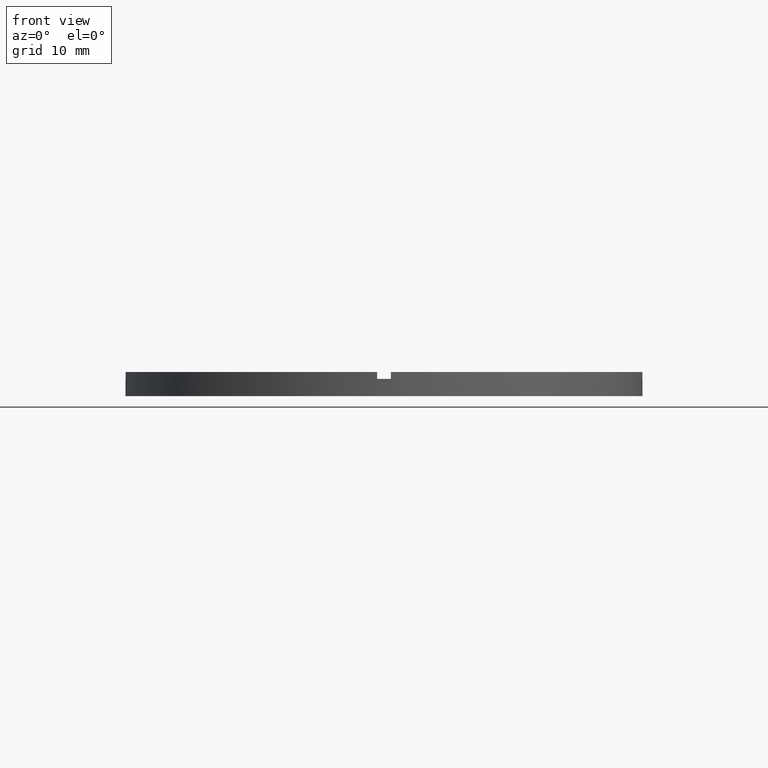
[diagram: clean part render]
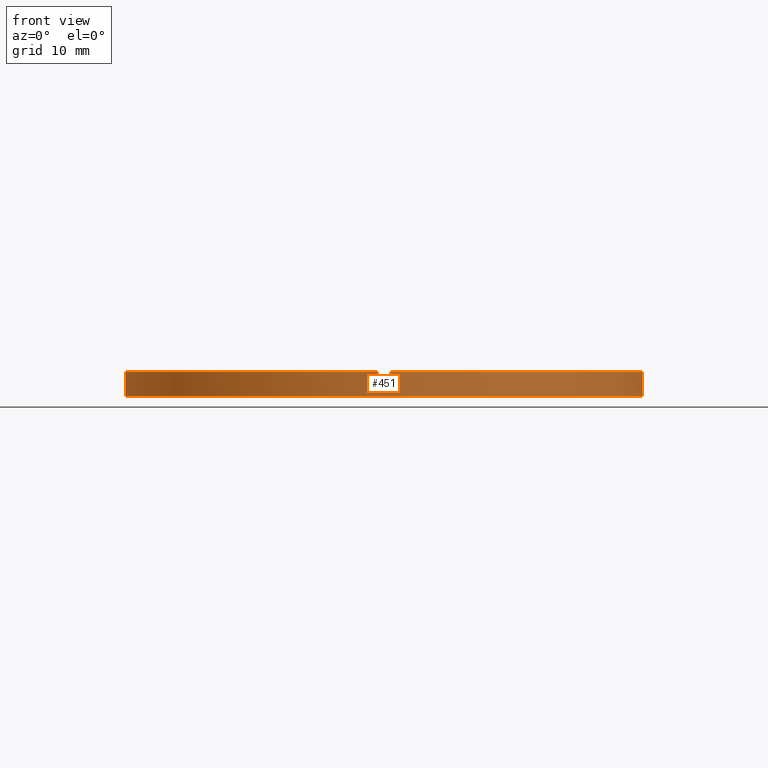
[diagram: same view with one face highlighted and labeled with its STEP entity id]
A machine part, front view. The second image highlights one B-rep face of the part: STEP entity #451.
In plain terms, the highlighted cylindrical surface (partial cylindrical patch) has radius 37.5 mm, axis along (-0, -0, -1).
Its self-contained STEP definition (entity closure, byte-faithful):
#2 = CIRCLE ( 'NONE', #723, 37.50000000000000711 ) ;
#4 = EDGE_CURVE ( 'NONE', #523, #440, #331, .T. ) ;
#8 = FACE_OUTER_BOUND ( 'NONE', #143, .T. ) ;
#9 = VECTOR ( 'NONE', #655, 1000.000000000000000 ) ;
#12 = CARTESIAN_POINT ( 'NONE',  ( 37.48666429545312440, -1.000000000000157430, 3.500000000000000000 ) ) ;
#13 = CIRCLE ( 'NONE', #747, 37.50000000000000711 ) ;
#16 = EDGE_CURVE ( 'NONE', #732, #409, #344, .T. ) ;
#27 = ORIENTED_EDGE ( 'NONE', *, *, #382, .F. ) ;
#33 = CARTESIAN_POINT ( 'NONE',  ( 0.000000000000000000, 0.000000000000000000, 2.500000000000000000 ) ) ;
#37 = ORIENTED_EDGE ( 'NONE', *, *, #16, .T. ) ;
#42 = CARTESIAN_POINT ( 'NONE',  ( 0.000000000000000000, 0.000000000000000000, 3.500000000000000000 ) ) ;
#49 = EDGE_CURVE ( 'NONE', #662, #440, #595, .T. ) ;
#55 = DIRECTION ( 'NONE',  ( -1.000000000000000000, 0.000000000000000000, 0.000000000000000000 ) ) ;
#66 = CARTESIAN_POINT ( 'NONE',  ( 0.000000000000000000, 0.000000000000000000, 2.500000000000000000 ) ) ;
#68 = DIRECTION ( 'NONE',  ( 0.000000000000000000, 0.000000000000000000, 1.000000000000000000 ) ) ;
#78 = VECTOR ( 'NONE', #221, 1000.000000000000000 ) ;
#85 = CARTESIAN_POINT ( 'NONE',  ( 0.000000000000000000, 0.000000000000000000, 3.500000000000000000 ) ) ;
#95 = CARTESIAN_POINT ( 'NONE',  ( -37.48666429545312440, -1.000000000000027534, 2.500000000000000000 ) ) ;
#96 = EDGE_CURVE ( 'NONE', #217, #687, #598, .T. ) ;
#104 = LINE ( 'NONE', #557, #643 ) ;
#113 = DIRECTION ( 'NONE',  ( 1.000000000000000000, 0.000000000000000000, 0.000000000000000000 ) ) ;
#124 = DIRECTION ( 'NONE',  ( 0.000000000000000000, 0.000000000000000000, 1.000000000000000000 ) ) ;
#132 = CARTESIAN_POINT ( 'NONE',  ( 37.50000000000000711, 4.592425496802575156E-15, 0.000000000000000000 ) ) ;
#136 = ORIENTED_EDGE ( 'NONE', *, *, #664, .F. ) ;
#139 = CARTESIAN_POINT ( 'NONE',  ( -37.50000000000000711, 0.000000000000000000, 3.500000000000000000 ) ) ;
#143 = EDGE_LOOP ( 'NONE', ( #654, #27, #568, #136, #735, #236, #37, #563, #164, #220, #310, #498 ) ) ;
#153 = CARTESIAN_POINT ( 'NONE',  ( 0.000000000000000000, 0.000000000000000000, 3.500000000000000000 ) ) ;
#164 = ORIENTED_EDGE ( 'NONE', *, *, #599, .T. ) ;
#177 = DIRECTION ( 'NONE',  ( 1.000000000000000000, 0.000000000000000000, 0.000000000000000000 ) ) ;
#181 = AXIS2_PLACEMENT_3D ( 'NONE', #66, #252, #193 ) ;
#193 = DIRECTION ( 'NONE',  ( 1.000000000000000000, 0.000000000000000000, 0.000000000000000000 ) ) ;
#216 = EDGE_CURVE ( 'NONE', #340, #242, #13, .T. ) ;
#217 = VERTEX_POINT ( 'NONE', #349 ) ;
#220 = ORIENTED_EDGE ( 'NONE', *, *, #216, .F. ) ;
#221 = DIRECTION ( 'NONE',  ( -0.000000000000000000, -0.000000000000000000, -1.000000000000000000 ) ) ;
#233 = VERTEX_POINT ( 'NONE', #12 ) ;
#234 = CARTESIAN_POINT ( 'NONE',  ( -37.50000000000000711, 0.000000000000000000, 0.000000000000000000 ) ) ;
#236 = ORIENTED_EDGE ( 'NONE', *, *, #693, .F. ) ;
#242 = VERTEX_POINT ( 'NONE', #95 ) ;
#248 = CARTESIAN_POINT ( 'NONE',  ( 0.9999999999998400169, -37.48666429545313150, 3.500000000000000000 ) ) ;
#252 = DIRECTION ( 'NONE',  ( -0.000000000000000000, 0.000000000000000000, 1.000000000000000000 ) ) ;
#253 = AXIS2_PLACEMENT_3D ( 'NONE', #42, #124, #177 ) ;
#268 = CYLINDRICAL_SURFACE ( 'NONE', #323, 37.50000000000000711 ) ;
#272 = DIRECTION ( 'NONE',  ( 0.000000000000000000, 0.000000000000000000, 1.000000000000000000 ) ) ;
#286 = EDGE_CURVE ( 'NONE', #682, #409, #539, .T. ) ;
#294 = AXIS2_PLACEMENT_3D ( 'NONE', #777, #68, #506 ) ;
#298 = VERTEX_POINT ( 'NONE', #746 ) ;
#310 = ORIENTED_EDGE ( 'NONE', *, *, #669, .T. ) ;
#313 = CARTESIAN_POINT ( 'NONE',  ( 0.9999999999998400169, -37.48666429545313150, 2.500000000000000000 ) ) ;
#323 = AXIS2_PLACEMENT_3D ( 'NONE', #153, #520, #55 ) ;
#324 = VECTOR ( 'NONE', #772, 1000.000000000000000 ) ;
#331 = LINE ( 'NONE', #615, #324 ) ;
#332 = VECTOR ( 'NONE', #450, 1000.000000000000000 ) ;
#340 = VERTEX_POINT ( 'NONE', #423 ) ;
#344 = LINE ( 'NONE', #389, #332 ) ;
#345 = LINE ( 'NONE', #139, #78 ) ;
#349 = CARTESIAN_POINT ( 'NONE',  ( 0.9999999999998400169, -37.48666429545313150, 3.500000000000000000 ) ) ;
#350 = CIRCLE ( 'NONE', #181, 37.50000000000000711 ) ;
#382 = EDGE_CURVE ( 'NONE', #298, #523, #2, .T. ) ;
#389 = CARTESIAN_POINT ( 'NONE',  ( -1.000000000000160094, -37.48666429545312440, 3.500000000000000000 ) ) ;
#394 = EDGE_CURVE ( 'NONE', #298, #233, #549, .T. ) ;
#409 = VERTEX_POINT ( 'NONE', #581 ) ;
#423 = CARTESIAN_POINT ( 'NONE',  ( -37.50000000000000711, 0.000000000000000000, 2.500000000000000000 ) ) ;
#440 = VERTEX_POINT ( 'NONE', #132 ) ;
#441 = CARTESIAN_POINT ( 'NONE',  ( 0.000000000000000000, 0.000000000000000000, 2.500000000000000000 ) ) ;
#450 = DIRECTION ( 'NONE',  ( 0.000000000000000000, 0.000000000000000000, 1.000000000000000000 ) ) ;
#451 = ADVANCED_FACE ( 'NONE', ( #8 ), #268, .T. ) ;
#498 = ORIENTED_EDGE ( 'NONE', *, *, #49, .T. ) ;
#499 = DIRECTION ( 'NONE',  ( -0.000000000000000000, -0.000000000000000000, -1.000000000000000000 ) ) ;
#505 = DIRECTION ( 'NONE',  ( 1.000000000000000000, 0.000000000000000000, 0.000000000000000000 ) ) ;
#506 = DIRECTION ( 'NONE',  ( 1.000000000000000000, 0.000000000000000000, 0.000000000000000000 ) ) ;
#520 = DIRECTION ( 'NONE',  ( -0.000000000000000000, -0.000000000000000000, -1.000000000000000000 ) ) ;
#523 = VERTEX_POINT ( 'NONE', #575 ) ;
#525 = CARTESIAN_POINT ( 'NONE',  ( 37.48666429545312440, -1.000000000000157430, 3.500000000000000000 ) ) ;
#527 = CARTESIAN_POINT ( 'NONE',  ( -1.000000000000160094, -37.48666429545312440, 2.500000000000000000 ) ) ;
#529 = AXIS2_PLACEMENT_3D ( 'NONE', #85, #272, #505 ) ;
#539 = CIRCLE ( 'NONE', #529, 37.50000000000000711 ) ;
#541 = DIRECTION ( 'NONE',  ( 0.000000000000000000, 0.000000000000000000, 1.000000000000000000 ) ) ;
#549 = LINE ( 'NONE', #525, #9 ) ;
#557 = CARTESIAN_POINT ( 'NONE',  ( -37.48666429545312440, -1.000000000000027534, 3.500000000000000000 ) ) ;
#563 = ORIENTED_EDGE ( 'NONE', *, *, #286, .F. ) ;
#568 = ORIENTED_EDGE ( 'NONE', *, *, #394, .T. ) ;
#575 = CARTESIAN_POINT ( 'NONE',  ( 37.50000000000000711, 4.592425496802575156E-15, 2.500000000000000000 ) ) ;
#581 = CARTESIAN_POINT ( 'NONE',  ( -1.000000000000160094, -37.48666429545312440, 3.500000000000000000 ) ) ;
#586 = VECTOR ( 'NONE', #499, 1000.000000000000000 ) ;
#595 = CIRCLE ( 'NONE', #294, 37.50000000000000711 ) ;
#598 = LINE ( 'NONE', #248, #586 ) ;
#599 = EDGE_CURVE ( 'NONE', #682, #242, #104, .T. ) ;
#606 = DIRECTION ( 'NONE',  ( 1.000000000000000000, 0.000000000000000000, 0.000000000000000000 ) ) ;
#611 = CIRCLE ( 'NONE', #253, 37.50000000000000711 ) ;
#615 = CARTESIAN_POINT ( 'NONE',  ( 37.50000000000000711, 4.592425496802575156E-15, 3.500000000000000000 ) ) ;
#617 = DIRECTION ( 'NONE',  ( -0.000000000000000000, -0.000000000000000000, -1.000000000000000000 ) ) ;
#625 = CARTESIAN_POINT ( 'NONE',  ( -37.48666429545312440, -1.000000000000027534, 3.500000000000000000 ) ) ;
#643 = VECTOR ( 'NONE', #617, 1000.000000000000000 ) ;
#654 = ORIENTED_EDGE ( 'NONE', *, *, #4, .F. ) ;
#655 = DIRECTION ( 'NONE',  ( 0.000000000000000000, 0.000000000000000000, 1.000000000000000000 ) ) ;
#660 = DIRECTION ( 'NONE',  ( 0.000000000000000000, 0.000000000000000000, 1.000000000000000000 ) ) ;
#662 = VERTEX_POINT ( 'NONE', #234 ) ;
#664 = EDGE_CURVE ( 'NONE', #217, #233, #611, .T. ) ;
#669 = EDGE_CURVE ( 'NONE', #340, #662, #345, .T. ) ;
#682 = VERTEX_POINT ( 'NONE', #625 ) ;
#687 = VERTEX_POINT ( 'NONE', #313 ) ;
#693 = EDGE_CURVE ( 'NONE', #732, #687, #350, .T. ) ;
#723 = AXIS2_PLACEMENT_3D ( 'NONE', #33, #660, #113 ) ;
#732 = VERTEX_POINT ( 'NONE', #527 ) ;
#735 = ORIENTED_EDGE ( 'NONE', *, *, #96, .T. ) ;
#746 = CARTESIAN_POINT ( 'NONE',  ( 37.48666429545312440, -1.000000000000157430, 2.500000000000000000 ) ) ;
#747 = AXIS2_PLACEMENT_3D ( 'NONE', #441, #541, #606 ) ;
#772 = DIRECTION ( 'NONE',  ( -0.000000000000000000, -0.000000000000000000, -1.000000000000000000 ) ) ;
#777 = CARTESIAN_POINT ( 'NONE',  ( 0.000000000000000000, 0.000000000000000000, 0.000000000000000000 ) ) ;